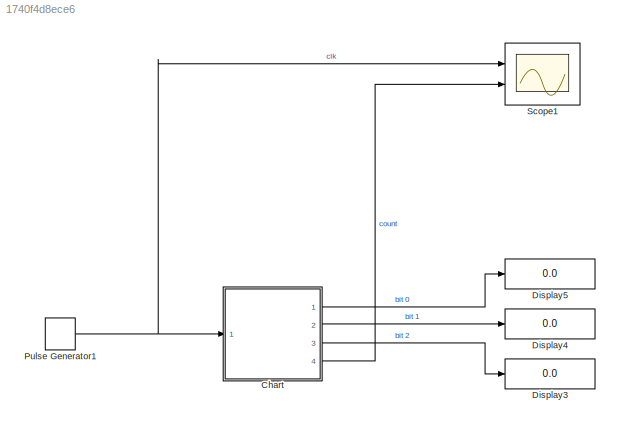
MODEL slx_1740f4d8ece6
KIND model
CONFIG AbsTol = auto
CONFIG EnableMultiTasking = off
CONFIG FixedStep = auto
CONFIG MaxStep = auto
CONFIG MinStep = auto
CONFIG RelTol = 1e-3
CONFIG SampleTimeConstraint = Unconstrained
CONFIG SolverName = VariableStepAuto
CONFIG StartTime = 0.0
CONFIG StopTime = inf
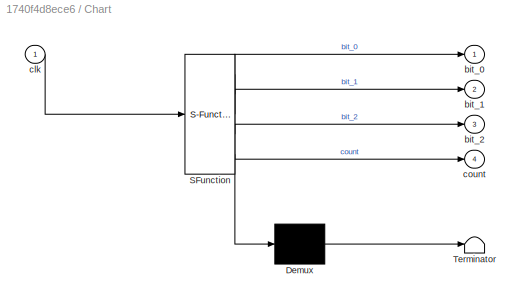
BLOCK [SubSystem] Chart
  ErrorFcn = Stateflow.Translate.translate
  PermitHierarchicalResolution = ExplicitOnly
  Ports = [1, 4]
  RequestExecContextInheritance = off
  SFBlockType = Chart
  TreatAsAtomicUnit = on
BLOCK [Demux] Chart/ Demux 
  Outputs = 1
  Ports = [1, 1]
BLOCK [S-Function] Chart/ SFunction 
  EnableBusSupport = on
  FunctionName = sf_sfun
  PortCounts = [1 5]
  Ports = [1, 5]
  SFcnIsStateOwnerBlock = off
  SFunctionDeploymentMode = off
  Tag = Stateflow S-Function 3
BLOCK [Terminator] Chart/ Terminator 
BLOCK [Outport] Chart/bit_0
BLOCK [Outport] Chart/bit_1
  Port = 2
BLOCK [Outport] Chart/bit_2
  Port = 3
BLOCK [Inport] Chart/clk
BLOCK [Outport] Chart/count
  Port = 4
BLOCK [Display] Display3
  Decimation = 1
  Ports = [1]
BLOCK [Display] Display4
  Decimation = 1
  Ports = [1]
BLOCK [Display] Display5
  Decimation = 1
  Ports = [1]
BLOCK [DiscretePulseGenerator] Pulse Generator1
  Period = 0.2
  Ports = [0, 1]
  PulseType = Time based
  PulseWidth = 50
BLOCK [Scope] Scope1
  Floating = off
  NumInputPorts = 2
  Ports = [2]
  ScopeSpecificationString = Simulink.scopes.TimeScopeBlockCfg('CurrentConfiguration', extmgr.ConfigurationSet(extmgr.Configuration('Core','General UI',true),extmgr.Configuration('Core','Source UI',true),extmgr.Configuration('Sources','WiredSimulink',true),extmgr.Configuration('Visuals','Time Domain',true,'SerializedDisplays',{struct('MinYLimReal','-0.125','MaxYLimReal','1.125','YLabelReal','','MinYLimMag','0.00000','MaxYLimM...<+3384ch>
LINE Chart:1 -> Display5:1
LINE Chart:2 -> Display4:1
LINE Chart:3 -> Display3:1
LINE Chart:4 -> Scope1:2
NET Pulse Generator1:1 -> Chart:1, Scope1:1
note: NET lines group one-source signal fan-out (src -> all destinations, sorted); 1:1 wires keep LINE
CHART Chart states=5 transitions=6
  STATE_LABEL 'STATE0\nentry:\nbit_0 = 0;\nbit_1 = 0;\nbit_2 = 0;\nexit:\ncount = 0;'
  STATE_LABEL 'STATE1\nentry:\nbit_0 =1;\nbit_1 = 0;\nbit_2 = 0;\nexit:\ncount = 1;'
  STATE_LABEL 'STATE5\nentry:\nbit_0=0;\nbit_1=0;\nbit_2=1;\nexit:\ncount = 4;\n'
  STATE_LABEL 'STATE2\nentry:\nbit_0 = 0;\nbit_1 = 1;\nbit_2 =0;\nexit:\ncount=2;'
  STATE_LABEL 'STATE3\nentry:\nbit_0 =1;\nbit_1 =1;\nbit_2 = 0;\nexit:\ncount=3;'
CHART  states=0 transitions=0
